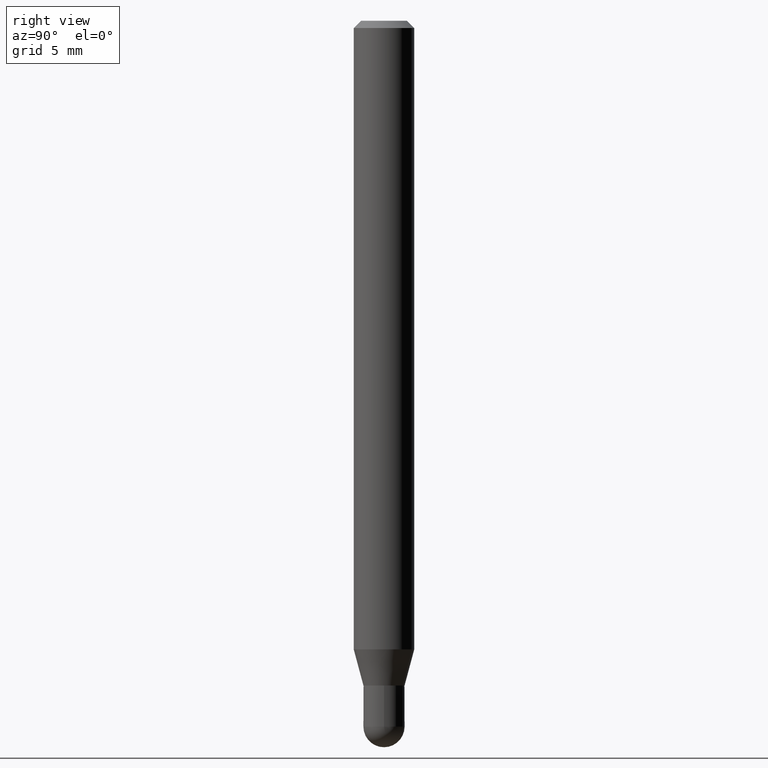
[diagram: clean part render]
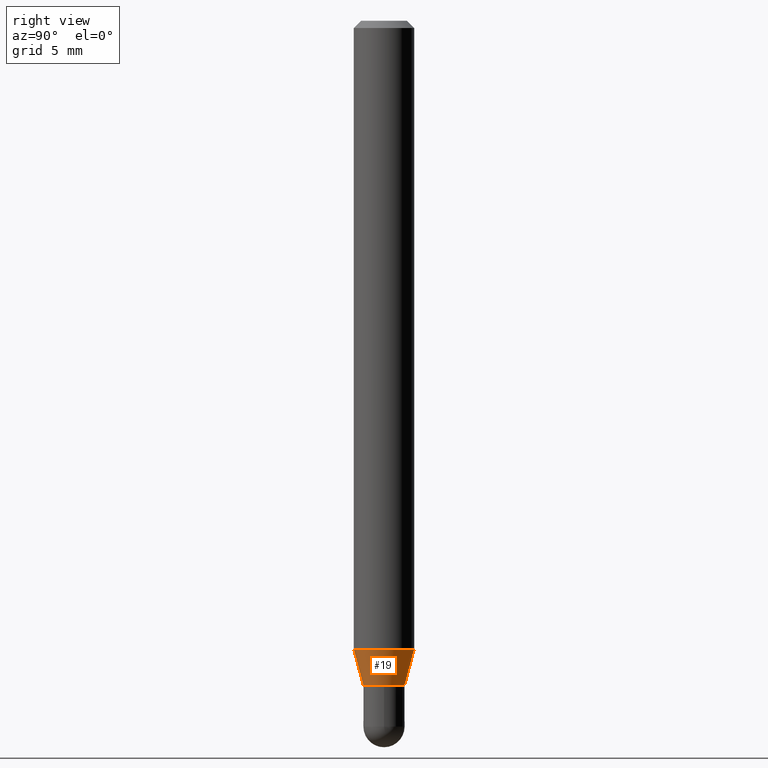
[diagram: same view with one face highlighted and labeled with its STEP entity id]
A machine part, right view. The second image highlights one B-rep face of the part: STEP entity #19.
In plain terms, the highlighted conical surface has half-angle 15 deg.
Its self-contained STEP definition (entity closure, byte-faithful):
#19 = ADVANCED_FACE ( 'NONE', ( #79 ), #346, .T. ) ;
#30 = ORIENTED_EDGE ( 'NONE', *, *, #511, .T. ) ;
#38 = VERTEX_POINT ( 'NONE', #481 ) ;
#40 = CARTESIAN_POINT ( 'NONE',  ( -2.967759138016342088E-16, -0.04250000000000499212, -1.372499999999999831 ) ) ;
#71 = DIRECTION ( 'NONE',  ( 1.839019923739650408E-15, 0.2588190451025320082, 0.9659258262890650926 ) ) ;
#79 = FACE_OUTER_BOUND ( 'NONE', #125, .T. ) ;
#96 = DIRECTION ( 'NONE',  ( -6.982962677686265922E-15, -1.000000000000000000, 4.370956789862821150E-15 ) ) ;
#123 = ORIENTED_EDGE ( 'NONE', *, *, #349, .F. ) ;
#125 = EDGE_LOOP ( 'NONE', ( #30, #218, #400, #123 ) ) ;
#158 = DIRECTION ( 'NONE',  ( -6.982962677686265922E-15, -1.000000000000000000, 6.427877632151176622E-15 ) ) ;
#167 = VERTEX_POINT ( 'NONE', #456 ) ;
#179 = AXIS2_PLACEMENT_3D ( 'NONE', #216, #366, #158 ) ;
#188 = EDGE_CURVE ( 'NONE', #38, #323, #404, .T. ) ;
#195 = CARTESIAN_POINT ( 'NONE',  ( -2.967759138016342088E-16, -0.04250000000000499212, -1.372499999999999831 ) ) ;
#196 = AXIS2_PLACEMENT_3D ( 'NONE', #325, #211, #361 ) ;
#201 = LINE ( 'NONE', #195, #482 ) ;
#211 = DIRECTION ( 'NONE',  ( -2.445416699617084767E-29, 3.491555958414317221E-15, 1.000000000000000000 ) ) ;
#216 = CARTESIAN_POINT ( 'NONE',  ( 3.356334420224448716E-29, -4.792160552923651095E-15, -1.372500000000000275 ) ) ;
#218 = ORIENTED_EDGE ( 'NONE', *, *, #312, .T. ) ;
#235 = VECTOR ( 'NONE', #71, 39.37007874015748854 ) ;
#237 = CARTESIAN_POINT ( 'NONE',  ( 4.440892098500944664E-16, 0.06249999999999550360, -1.297858983848626080 ) ) ;
#269 = DIRECTION ( 'NONE',  ( -2.445416699617084767E-29, 3.491555958414317221E-15, 1.000000000000000000 ) ) ;
#312 = EDGE_CURVE ( 'NONE', #167, #323, #383, .T. ) ;
#322 = VERTEX_POINT ( 'NONE', #40 ) ;
#323 = VERTEX_POINT ( 'NONE', #237 ) ;
#325 = CARTESIAN_POINT ( 'NONE',  ( 3.356334420224448716E-29, -4.792160552923651095E-15, -1.372500000000000275 ) ) ;
#331 = CARTESIAN_POINT ( 'NONE',  ( 3.173806032851490413E-29, -4.531547268238220910E-15, -1.297858983848625858 ) ) ;
#346 = CONICAL_SURFACE ( 'NONE', #196, 0.04250000000000020428, 0.2617993877991576235 ) ;
#347 = DIRECTION ( 'NONE',  ( -1.807323732225379838E-15, -0.2588190451025252914, 0.9659258262890670910 ) ) ;
#349 = EDGE_CURVE ( 'NONE', #322, #38, #201, .T. ) ;
#361 = DIRECTION ( 'NONE',  ( -6.982962677686265922E-15, -1.000000000000000000, 6.427877632151176622E-15 ) ) ;
#366 = DIRECTION ( 'NONE',  ( -2.445416699617084767E-29, 3.491555958414317221E-15, 1.000000000000000000 ) ) ;
#383 = LINE ( 'NONE', #385, #235 ) ;
#385 = CARTESIAN_POINT ( 'NONE',  ( 3.019806626980775078E-16, 0.04249999999999541644, -1.372500000000000497 ) ) ;
#400 = ORIENTED_EDGE ( 'NONE', *, *, #188, .F. ) ;
#404 = CIRCLE ( 'NONE', #454, 0.06250000000000000000 ) ;
#447 = CIRCLE ( 'NONE', #179, 0.04250000000000020428 ) ;
#454 = AXIS2_PLACEMENT_3D ( 'NONE', #331, #269, #96 ) ;
#456 = CARTESIAN_POINT ( 'NONE',  ( 3.730349362740859132E-16, 0.04249999999999541644, -1.372500000000000497 ) ) ;
#481 = CARTESIAN_POINT ( 'NONE',  ( -4.364351673553596712E-16, -0.06250000000000449640, -1.297858983848625636 ) ) ;
#482 = VECTOR ( 'NONE', #347, 39.37007874015748143 ) ;
#511 = EDGE_CURVE ( 'NONE', #322, #167, #447, .T. ) ;